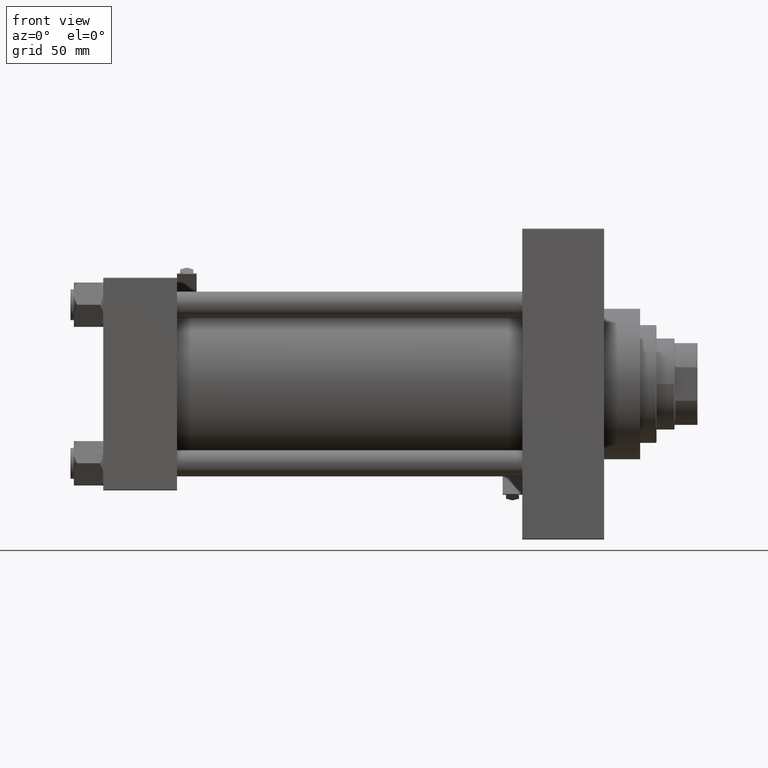
[diagram: clean part render]
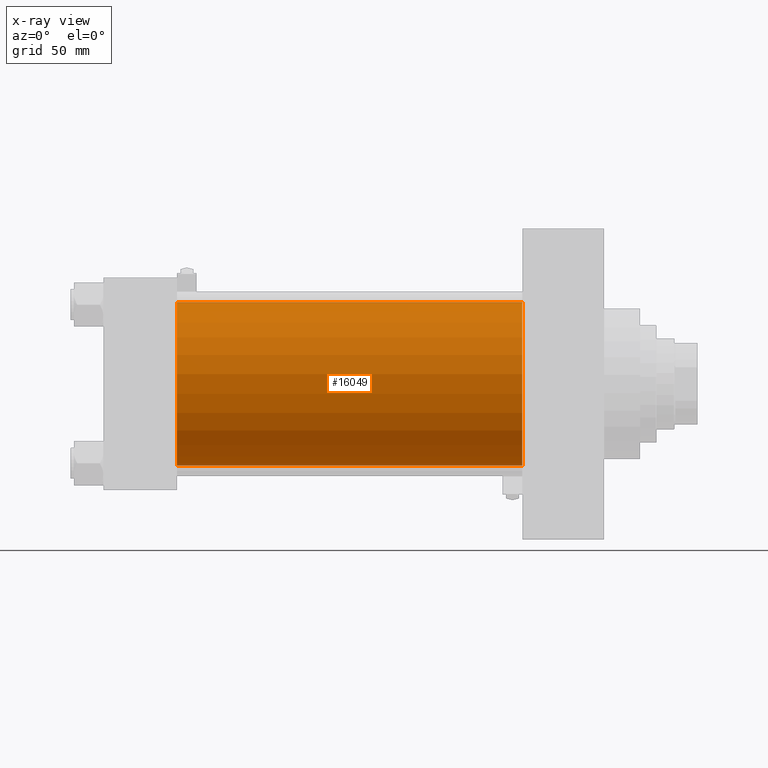
[diagram: x-ray — body ghosted, one internal face saturated and labeled with its STEP entity id]
A machine part, front view, then the same camera in x-ray: the body is ghosted and one INTERNAL B-rep face — a face not visible from any outside direction — is saturated and labeled: STEP entity #16049.
In plain terms, the highlighted cylindrical surface (partial cylindrical patch) has radius 50 mm, axis along (-1, -0, -0).
Its self-contained STEP definition (entity closure, byte-faithful):
#1858 = CARTESIAN_POINT ( 'NONE',  ( 256.0000000000000000, -2.602085213965210642E-15, 0.000000000000000000 ) ) ;
#2706 = CARTESIAN_POINT ( 'NONE',  ( 256.0000000000000000, 3.521148781771555838E-15, -50.00000000000000000 ) ) ;
#2890 = EDGE_CURVE ( 'NONE', #25034, #3737, #40775, .T. ) ;
#3737 = VERTEX_POINT ( 'NONE', #10496 ) ;
#5255 = CYLINDRICAL_SURFACE ( 'NONE', #44332, 50.00000000000000000 ) ;
#5798 = DIRECTION ( 'NONE',  ( 0.000000000000000000, 0.000000000000000000, -1.000000000000000000 ) ) ;
#5846 = DIRECTION ( 'NONE',  ( -1.000000000000000000, -0.000000000000000000, -0.000000000000000000 ) ) ;
#5905 = VECTOR ( 'NONE', #5846, 1000.000000000000000 ) ;
#5976 = CARTESIAN_POINT ( 'NONE',  ( 256.0000000000000000, -2.602085213965210642E-15, 50.00000000000000000 ) ) ;
#8712 = DIRECTION ( 'NONE',  ( 0.000000000000000000, 0.000000000000000000, 1.000000000000000000 ) ) ;
#10496 = CARTESIAN_POINT ( 'NONE',  ( 45.00000000000000000, -2.602085213965210642E-15, 50.00000000000000000 ) ) ;
#11345 = AXIS2_PLACEMENT_3D ( 'NONE', #42056, #30453, #34636 ) ;
#13021 = LINE ( 'NONE', #25103, #5905 ) ;
#15725 = EDGE_CURVE ( 'NONE', #25034, #33064, #33293, .T. ) ;
#16049 = ADVANCED_FACE ( 'NONE', ( #38825 ), #5255, .F. ) ;
#18283 = EDGE_CURVE ( 'NONE', #3737, #19036, #48385, .T. ) ;
#18338 = AXIS2_PLACEMENT_3D ( 'NONE', #1858, #47044, #5798 ) ;
#19036 = VERTEX_POINT ( 'NONE', #32836 ) ;
#19532 = ORIENTED_EDGE ( 'NONE', *, *, #15725, .T. ) ;
#21293 = DIRECTION ( 'NONE',  ( -1.000000000000000000, -0.000000000000000000, -0.000000000000000000 ) ) ;
#21733 = EDGE_CURVE ( 'NONE', #33064, #19036, #13021, .T. ) ;
#23543 = DIRECTION ( 'NONE',  ( -1.000000000000000000, -0.000000000000000000, -0.000000000000000000 ) ) ;
#24021 = CARTESIAN_POINT ( 'NONE',  ( 256.0000000000000000, -2.602085213965210642E-15, 0.000000000000000000 ) ) ;
#24810 = VECTOR ( 'NONE', #21293, 1000.000000000000000 ) ;
#25034 = VERTEX_POINT ( 'NONE', #27487 ) ;
#25103 = CARTESIAN_POINT ( 'NONE',  ( 256.0000000000000000, 3.521148781771555838E-15, -50.00000000000000000 ) ) ;
#25508 = ORIENTED_EDGE ( 'NONE', *, *, #2890, .F. ) ;
#25701 = ORIENTED_EDGE ( 'NONE', *, *, #18283, .F. ) ;
#27487 = CARTESIAN_POINT ( 'NONE',  ( 256.0000000000000000, -2.602085213965210642E-15, 50.00000000000000000 ) ) ;
#30453 = DIRECTION ( 'NONE',  ( 1.000000000000000000, 0.000000000000000000, 0.000000000000000000 ) ) ;
#30971 = EDGE_LOOP ( 'NONE', ( #19532, #35081, #25701, #25508 ) ) ;
#32836 = CARTESIAN_POINT ( 'NONE',  ( 45.00000000000000000, 3.521148781771555838E-15, -50.00000000000000000 ) ) ;
#33064 = VERTEX_POINT ( 'NONE', #2706 ) ;
#33293 = CIRCLE ( 'NONE', #18338, 50.00000000000000000 ) ;
#34636 = DIRECTION ( 'NONE',  ( 0.000000000000000000, 0.000000000000000000, -1.000000000000000000 ) ) ;
#35081 = ORIENTED_EDGE ( 'NONE', *, *, #21733, .T. ) ;
#38825 = FACE_OUTER_BOUND ( 'NONE', #30971, .T. ) ;
#40775 = LINE ( 'NONE', #5976, #24810 ) ;
#42056 = CARTESIAN_POINT ( 'NONE',  ( 45.00000000000000000, -2.602085213965210642E-15, 0.000000000000000000 ) ) ;
#44332 = AXIS2_PLACEMENT_3D ( 'NONE', #24021, #23543, #8712 ) ;
#47044 = DIRECTION ( 'NONE',  ( 1.000000000000000000, 0.000000000000000000, 0.000000000000000000 ) ) ;
#48385 = CIRCLE ( 'NONE', #11345, 50.00000000000000000 ) ;